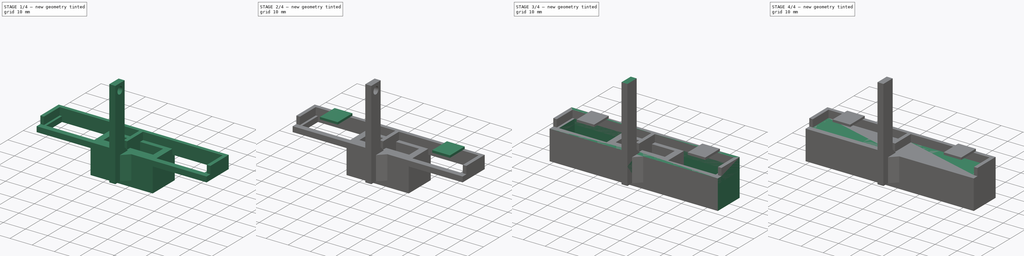
[diagram: build sequence overview — one tinted view per stage of 4, left to right]
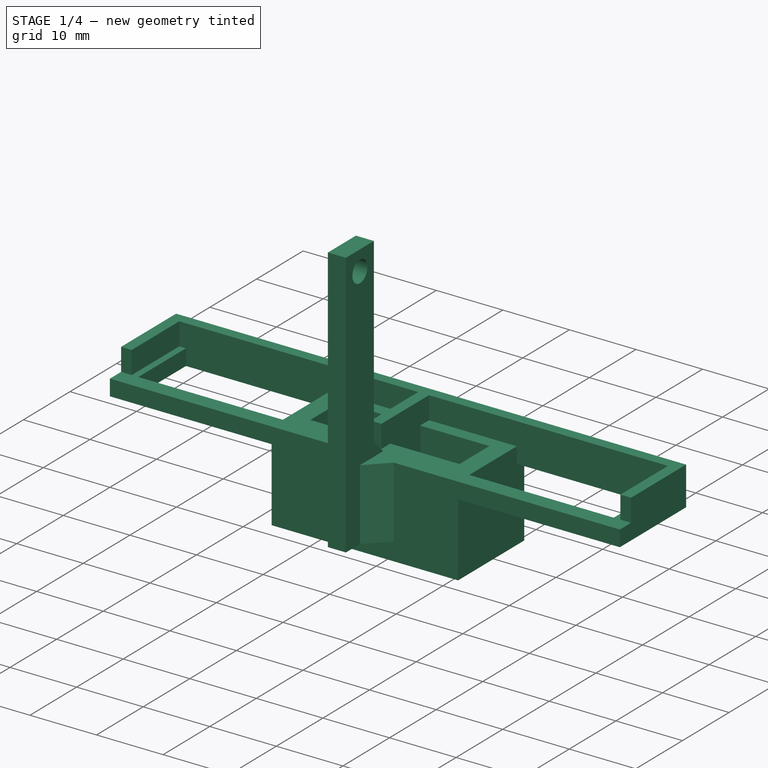
[diagram: stage 1 of 4 — iso view after this stage's code; geometry added in this stage tinted green]
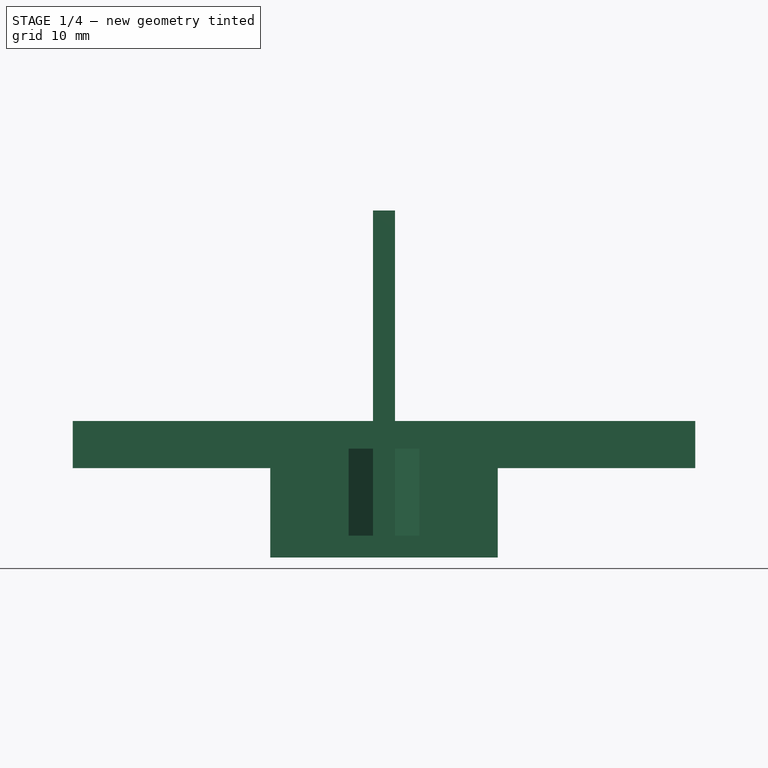
[diagram: stage 1 of 4 — front view after this stage's code; geometry added in this stage tinted green]
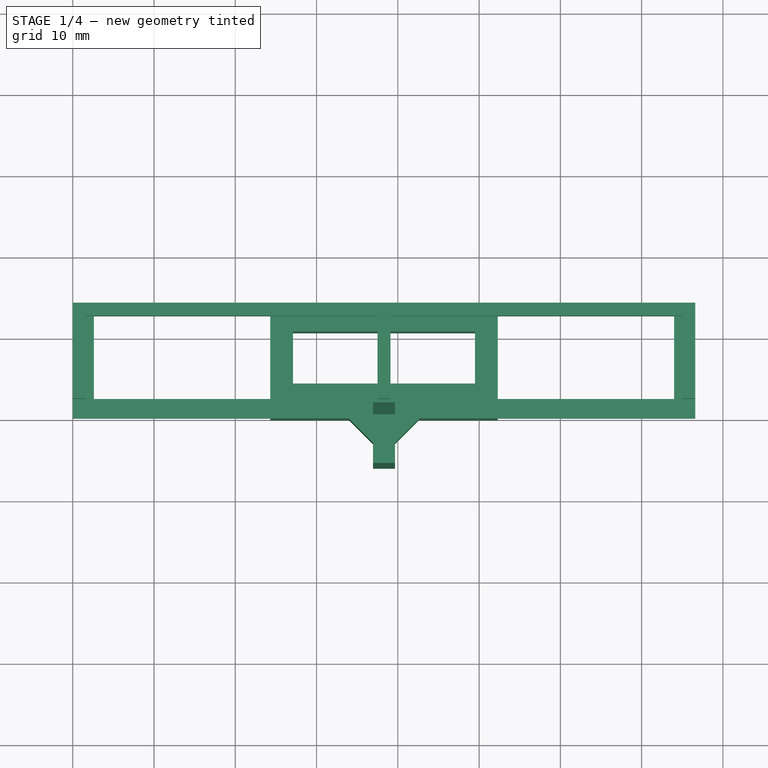
[diagram: stage 1 of 4 — top view after this stage's code; geometry added in this stage tinted green]
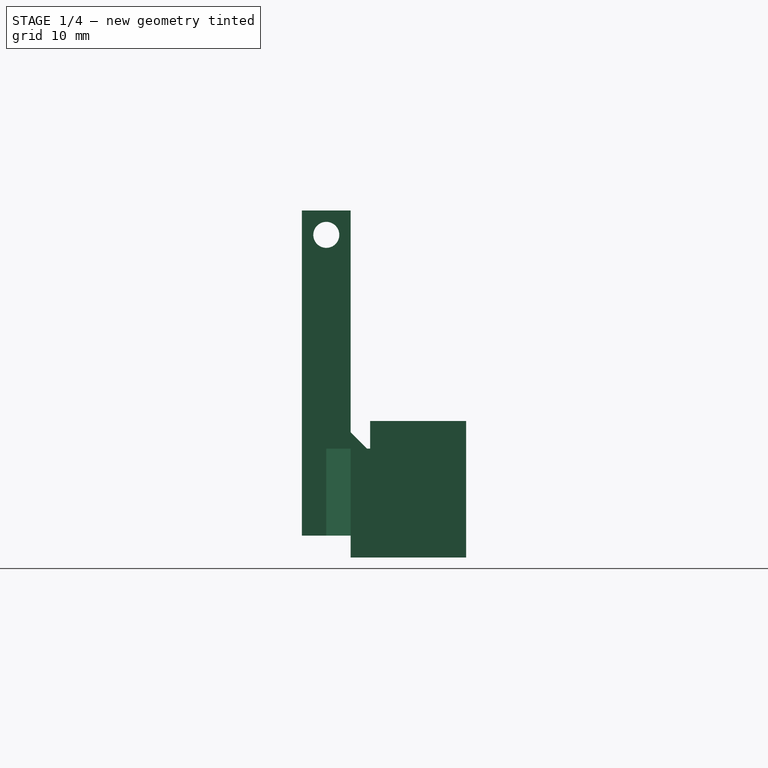
[diagram: stage 1 of 4 — right view after this stage's code; geometry added in this stage tinted green]
FCSTD DOCUMENT  (FreeCAD 0.16R6712 (Git))
Label: ir3
License: All rights reserved
LicenseURL: http://en.wikipedia.org/wiki/All_rights_reserved
objects: Sketcher::SketchObject×10, PartDesign::Pocket×5, PartDesign::Pad×5, Part::Feature×4, App::MeasureDistance×2, Part::Chamfer×2, Part::Box×1
note: 37 computed .brp shape members not serialized (recipe doc carries the construction recipe); baked Part::Feature solids carry a one-line shape summary decoded from their .brp

FEATURE [App::MeasureDistance] Distance001  label="Distance: 11 mm"
  Distance = 11
  P1 = (24.3,0,0)
  P2 = (24.3,0,11)
FEATURE [Part::Feature] Pad001001  label="Pad002"
  shape: bbox 76.6 x 20.2 x 42.7 mm, 36 faces (baked)
FEATURE [Sketcher::SketchObject] Sketch006
  ExternalGeometry = -> [Pad001001]
  Placement = pos=(39.65,0,0) rot=(0.57735,0.57735,0.57735;2.0944rad)
  Support = -> Pad001001 [Face34]
  sketch-geometry (1):
    g0: Circle CenterX=-3 CenterY=39.7 CenterZ=0 NormalX=0 NormalY=0 NormalZ=1 Radius=1.6
  constraints (3):
    c: DistanceX(g-4,g0) = 3
    c: DistanceY(g0,g-4) = 3
    c: Radius(g0) = 1.6
FEATURE [PartDesign::Pocket] Pocket004002
  Length = 5
  Sketch = -> Sketch006
  Type = 0
FEATURE [Part::Chamfer] Chamfer
  Base = -> Pocket004002
  Edges = 1 edges r=3: [Edge18]
FEATURE [Part::Chamfer] Chamfer001
  Base = -> Chamfer
  Edges = 2 edges r=3: [Edge37,Edge41]
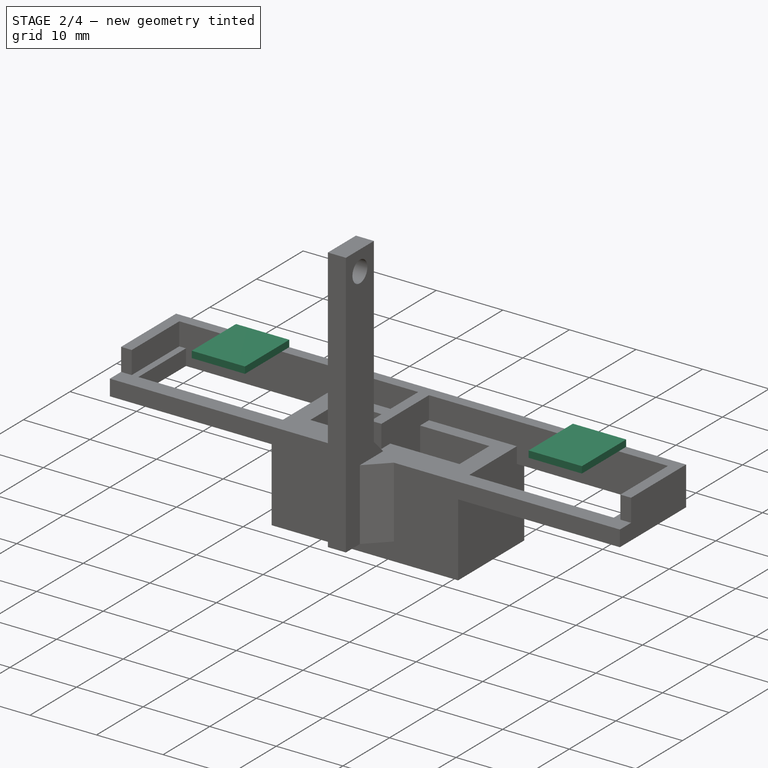
[diagram: stage 2 of 4 — iso view after this stage's code; geometry added in this stage tinted green]
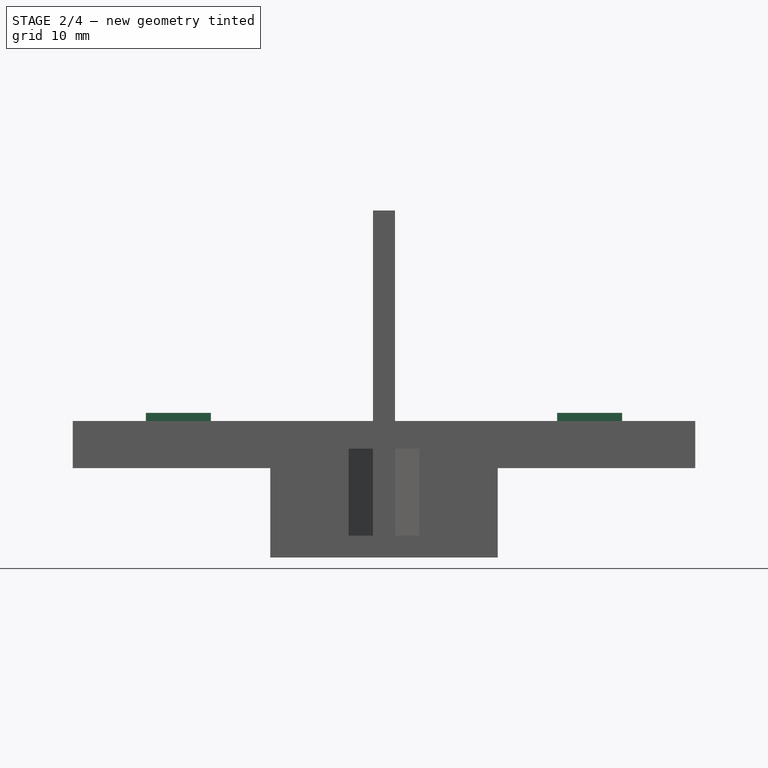
[diagram: stage 2 of 4 — front view after this stage's code; geometry added in this stage tinted green]
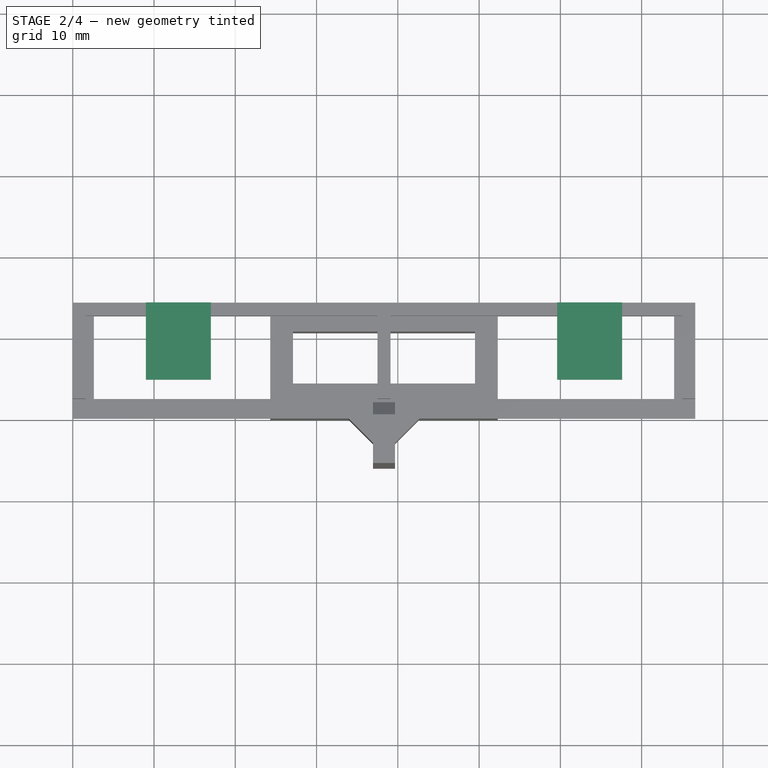
[diagram: stage 2 of 4 — top view after this stage's code; geometry added in this stage tinted green]
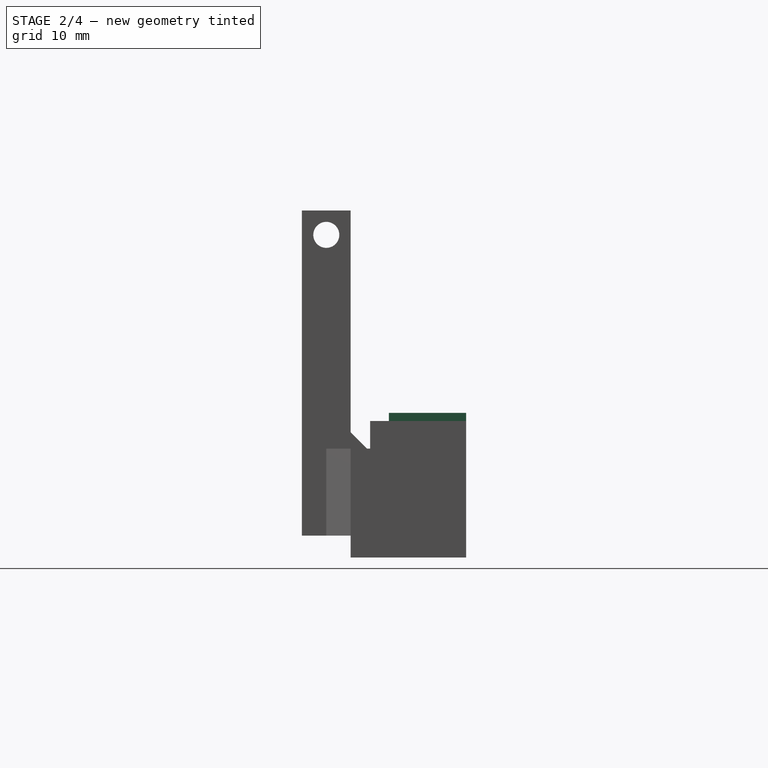
[diagram: stage 2 of 4 — right view after this stage's code; geometry added in this stage tinted green]
FEATURE [Sketcher::SketchObject] Sketch007
  ExternalGeometry = -> [Chamfer001]
  Placement = pos=(0,0,16.8) rot=(0,0,1;0rad)
  Support = -> Chamfer001 [Face35]
  sketch-geometry (8):
    g0: LineSegment StartX=9 StartY=14.2 StartZ=0 EndX=17 EndY=14.2 EndZ=0
    g1: LineSegment StartX=17 StartY=14.2 StartZ=0 EndX=17 EndY=12.7 EndZ=0
    g2: LineSegment StartX=17 StartY=12.7 StartZ=0 EndX=9 EndY=12.7 EndZ=0
    g3: LineSegment StartX=9 StartY=12.7 StartZ=0 EndX=9 EndY=14.2 EndZ=0
    g4: LineSegment StartX=59.6 StartY=14.2 StartZ=0 EndX=67.6 EndY=14.2 EndZ=0
    g5: LineSegment StartX=67.6 StartY=14.2 StartZ=0 EndX=67.6 EndY=12.7 EndZ=0
    g6: LineSegment StartX=67.6 StartY=12.7 StartZ=0 EndX=59.6 EndY=12.7 EndZ=0
    g7: LineSegment StartX=59.6 StartY=12.7 StartZ=0 EndX=59.6 EndY=14.2 EndZ=0
  constraints (24):
    c: Coincident(g0,g1)
    c: Coincident(g1,g2)
    c: Coincident(g2,g3)
    c: Coincident(g3,g0)
    c: Horizontal(g0)
    c: Horizontal(g2)
    c: Vertical(g1)
    c: Vertical(g3)
    c: DistanceY(g1,g1) = 1.5
    c: DistanceX(g-4,g0) = 9
    c: DistanceX(g0,g0) = 8
    c: DistanceY(g0,g-4) = 0
    c: Coincident(g4,g5)
    c: Coincident(g5,g6)
    c: Coincident(g6,g7)
    c: Coincident(g7,g4)
    c: Horizontal(g4)
    c: Horizontal(g6)
    c: Vertical(g5)
    c: Vertical(g7)
    c: DistanceX(g4,g4) = 8
    c: DistanceY(g7,g7) = 1.5
    c: DistanceX(g4,g-5) = 9
    c: DistanceY(g4,g-5) = 0
FEATURE [PartDesign::Pad] Pad001002
  Length = 1
  Length2 = 100
  Sketch = -> Sketch007
  Type = 0
FEATURE [Sketcher::SketchObject] Sketch008
  ExternalGeometry = -> [Pad001002]
  Placement = pos=(0,12.7,0) rot=(1,0,0;1.5708rad)
  Support = -> Pad001002 [Face42]
  sketch-geometry (4):
    g0: LineSegment StartX=9 StartY=17.8 StartZ=0 EndX=17 EndY=17.8 EndZ=0
    g1: LineSegment StartX=17 StartY=17.8 StartZ=0 EndX=17 EndY=16.8 EndZ=0
    g2: LineSegment StartX=17 StartY=16.8 StartZ=0 EndX=9 EndY=16.8 EndZ=0
    g3: LineSegment StartX=9 StartY=16.8 StartZ=0 EndX=9 EndY=17.8 EndZ=0
  constraints (11):
    c: Coincident(g0,g1)
    c: Coincident(g1,g2)
    c: Coincident(g2,g3)
    c: Coincident(g3,g0)
    c: Horizontal(g0)
    c: Horizontal(g2)
    c: Vertical(g1)
    c: Vertical(g3)
    c: Coincident(g2,g-4)
    c: Coincident(g0,g-4)
    c: Coincident(g0,g-5)
FEATURE [PartDesign::Pad] Pad001003
  Length = 8
  Length2 = 100
  Sketch = -> Sketch008
  Type = 0
FEATURE [Sketcher::SketchObject] Sketch009
  ExternalGeometry = -> [Pad001003]
  Placement = pos=(0,12.7,0) rot=(1,0,0;1.5708rad)
  Support = -> Pad001003 [Face51]
  sketch-geometry (4):
    g0: LineSegment StartX=59.6 StartY=17.8 StartZ=0 EndX=67.6 EndY=17.8 EndZ=0
    g1: LineSegment StartX=67.6 StartY=17.8 StartZ=0 EndX=67.6 EndY=16.8 EndZ=0
    g2: LineSegment StartX=67.6 StartY=16.8 StartZ=0 EndX=59.6 EndY=16.8 EndZ=0
    g3: LineSegment StartX=59.6 StartY=16.8 StartZ=0 EndX=59.6 EndY=17.8 EndZ=0
  constraints (11):
    c: Coincident(g0,g1)
    c: Coincident(g1,g2)
    c: Coincident(g2,g3)
    c: Coincident(g3,g0)
    c: Horizontal(g0)
    c: Horizontal(g2)
    c: Vertical(g1)
    c: Vertical(g3)
    c: Coincident(g2,g-4)
    c: Coincident(g0,g-4)
    c: Coincident(g0,g-5)
FEATURE [PartDesign::Pad] Pad001004
  Length = 8
  Length2 = 100
  Sketch = -> Sketch009
  Type = 0
FEATURE [Part::Feature] Pad001004001  label="Pad001005"
  shape: bbox 76.6 x 20.2 x 42.7 mm, 52 faces (baked)
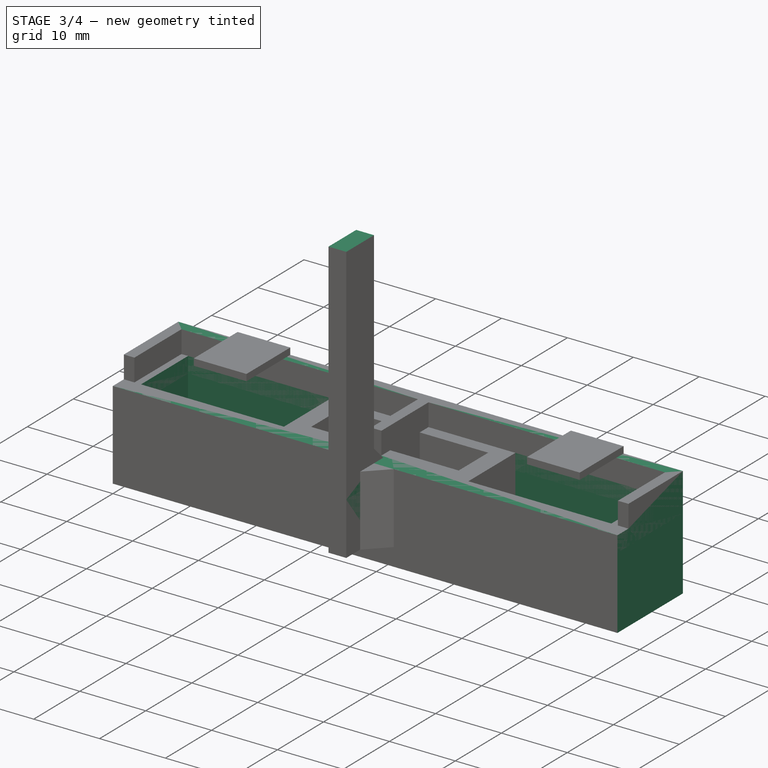
[diagram: stage 3 of 4 — iso view after this stage's code; geometry added in this stage tinted green]
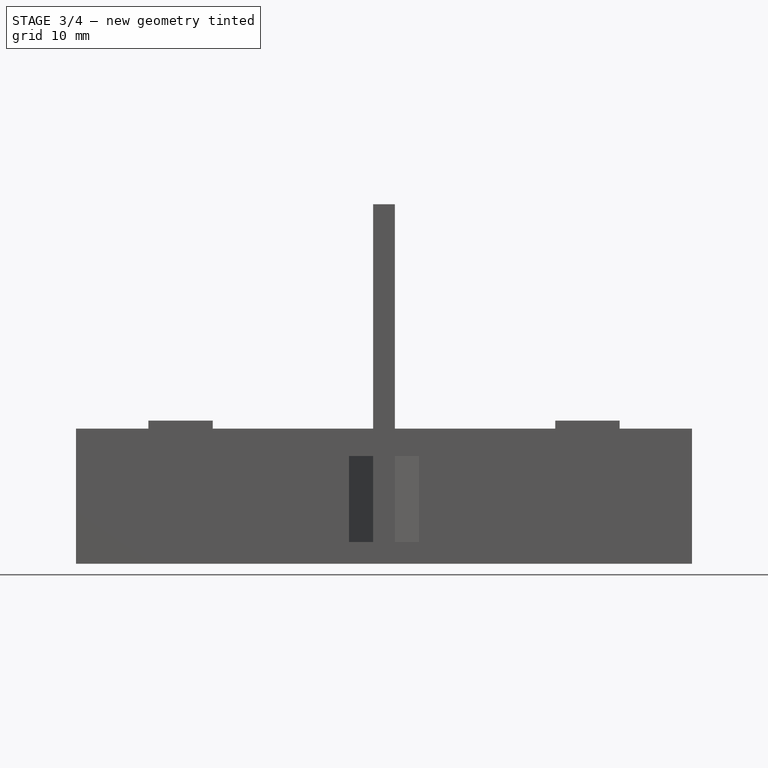
[diagram: stage 3 of 4 — front view after this stage's code; geometry added in this stage tinted green]
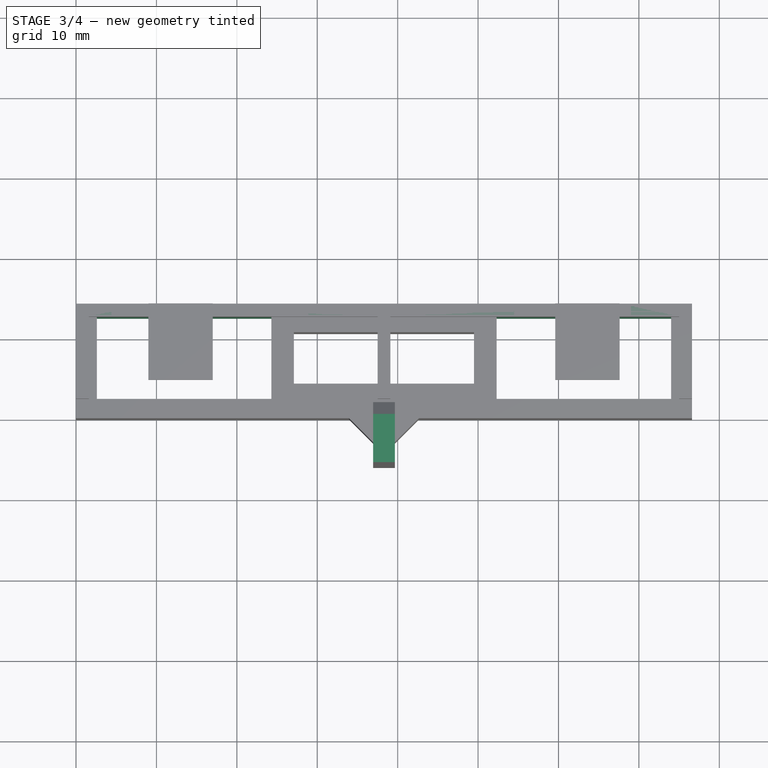
[diagram: stage 3 of 4 — top view after this stage's code; geometry added in this stage tinted green]
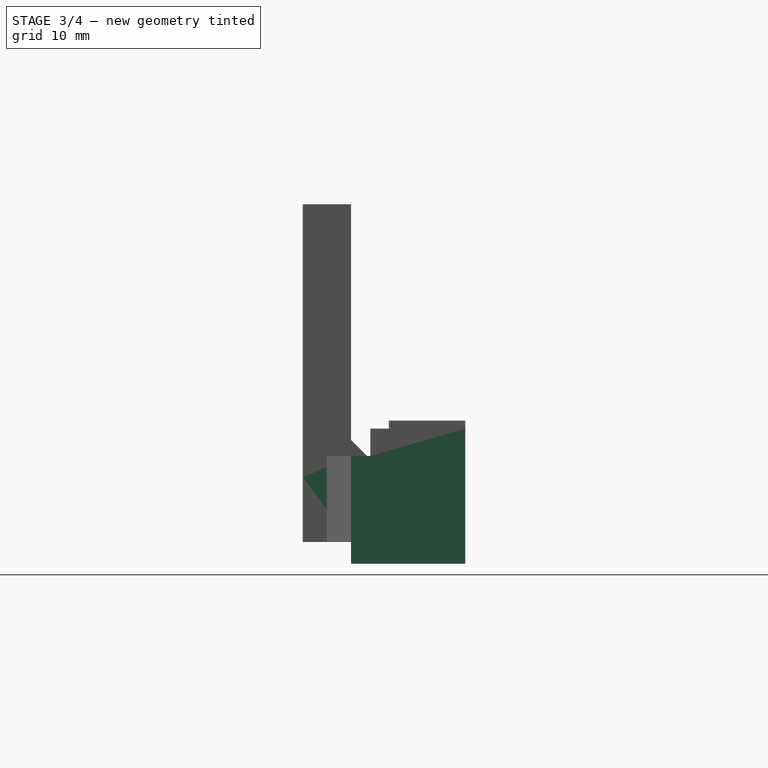
[diagram: stage 3 of 4 — right view after this stage's code; geometry added in this stage tinted green]
FEATURE [Part::Feature] Pocket001
  shape: bbox 76.6 x 14.2 x 16.8 mm, 16 faces (baked)
FEATURE [Sketcher::SketchObject] Sketch
  ExternalGeometry = -> [Pocket001]
  Placement = pos=(0,0,13.4) rot=(0,0,1;0rad)
  Support = -> Pocket001 [Face3]
  sketch-geometry (10):
    g0: LineSegment [constr] StartX=75 StartY=12.6 StartZ=0 EndX=74 EndY=12.6 EndZ=0
    g1: LineSegment [constr] StartX=1.6 StartY=12.6 StartZ=0 EndX=2.6 EndY=12.6 EndZ=0
    g2: LineSegment StartX=74 StartY=12.6 StartZ=0 EndX=52.3 EndY=12.6 EndZ=0
    g3: LineSegment StartX=52.3 StartY=12.6 StartZ=0 EndX=52.3 EndY=2.4 EndZ=0
    g4: LineSegment StartX=52.3 StartY=2.4 StartZ=0 EndX=74 EndY=2.4 EndZ=0
    g5: LineSegment StartX=74 StartY=2.4 StartZ=0 EndX=74 EndY=12.6 EndZ=0
    g6: LineSegment StartX=2.6 StartY=12.6 StartZ=0 EndX=24.3 EndY=12.6 EndZ=0
    g7: LineSegment StartX=24.3 StartY=12.6 StartZ=0 EndX=24.3 EndY=2.4 EndZ=0
    g8: LineSegment StartX=24.3 StartY=2.4 StartZ=0 EndX=2.6 EndY=2.4 EndZ=0
    g9: LineSegment StartX=2.6 StartY=2.4 StartZ=0 EndX=2.6 EndY=12.6 EndZ=0
  constraints (28):
    c: Coincident(g0,g-4)
    c: Horizontal(g0)
    c: DistanceX(g0,g0) = 1
    c: Coincident(g1,g-6)
    c: PointOnObject(g1,g-5)
    c: DistanceX(g1,g1) = 1
    c: Coincident(g2,g3)
    c: Coincident(g3,g4)
    c: Coincident(g4,g5)
    c: Coincident(g5,g2)
    c: Horizontal(g2)
    c: Horizontal(g4)
    c: Vertical(g3)
    c: Vertical(g5)
    c: Coincident(g2,g0)
    c: Coincident(g6,g7)
    c: Coincident(g7,g8)
    c: Coincident(g8,g9)
    c: Coincident(g9,g6)
    c: Horizontal(g6)
    c: Horizontal(g8)
    c: Vertical(g7)
    c: Vertical(g9)
    c: Coincident(g6,g1)
    c: DistanceX(g8,g8) = 21.7
    c: DistanceY(g7,g7) = 10.2
    c: DistanceX(g4,g4) = 21.7
    c: DistanceY(g3,g3) = 10.2
FEATURE [PartDesign::Pocket] Pocket002
  Length = 14
  Sketch = -> Sketch
  Type = 0
FEATURE [Sketcher::SketchObject] Sketch002
  ExternalGeometry = -> [Pocket002]
  Placement = pos=(0,0,13.4) rot=(0,0,1;0rad)
  Support = -> Pocket002 [Face3]
  sketch-geometry (10):
    g0: LineSegment [constr] StartX=37.5 StartY=12.6 StartZ=0 EndX=37.5 EndY=10.7 EndZ=0
    g1: LineSegment StartX=37.5 StartY=10.7 StartZ=0 EndX=27.1 EndY=10.7 EndZ=0
    g2: LineSegment StartX=27.1 StartY=10.7 StartZ=0 EndX=27.1 EndY=4.3 EndZ=0
    g3: LineSegment StartX=27.1 StartY=4.3 StartZ=0 EndX=37.5 EndY=4.3 EndZ=0
    g4: LineSegment StartX=37.5 StartY=4.3 StartZ=0 EndX=37.5 EndY=10.7 EndZ=0
    g5: LineSegment [constr] StartX=39.1 StartY=12.6 StartZ=0 EndX=39.1 EndY=10.7 EndZ=0
    g6: LineSegment StartX=39.1 StartY=10.7 StartZ=0 EndX=49.5 EndY=10.7 EndZ=0
    g7: LineSegment StartX=49.5 StartY=10.7 StartZ=0 EndX=49.5 EndY=4.3 EndZ=0
    g8: LineSegment StartX=49.5 StartY=4.3 StartZ=0 EndX=39.1 EndY=4.3 EndZ=0
    g9: LineSegment StartX=39.1 StartY=4.3 StartZ=0 EndX=39.1 EndY=10.7 EndZ=0
  constraints (28):
    c: Coincident(g0,g-4)
    c: Vertical(g0)
    c: DistanceY(g0,g0) = 1.9
    c: Coincident(g1,g2)
    c: Coincident(g2,g3)
    c: Coincident(g3,g4)
    c: Coincident(g4,g1)
    c: Horizontal(g1)
    c: Horizontal(g3)
    c: Vertical(g2)
    c: Vertical(g4)
    c: Coincident(g1,g0)
    c: DistanceX(g1,g1) = 10.4
    c: DistanceY(g2,g2) = 6.4
    c: Coincident(g5,g-6)
    c: PointOnObject(g5,g-6)
    c: DistanceY(g5,g5) = 1.9
    c: Coincident(g6,g7)
    c: Coincident(g7,g8)
    c: Coincident(g8,g9)
    c: Coincident(g9,g6)
    c: Horizontal(g6)
    c: Horizontal(g8)
    c: Vertical(g7)
    c: Vertical(g9)
    c: Coincident(g6,g5)
    c: DistanceX(g6,g6) = 10.4
    c: DistanceY(g7,g7) = 6.4
FEATURE [PartDesign::Pocket] Pocket003
  Length = 14
  Sketch = -> Sketch002
  Type = 0
FEATURE [Part::Feature] Pocket004001  label="Pocket005"
  shape: bbox 76.6 x 14.2 x 16.8 mm, 30 faces (baked)
FEATURE [Sketcher::SketchObject] Sketch004
  ExternalGeometry = -> [Pocket004001]
  Placement = pos=(0,0,0) rot=(1,0,0;1.5708rad)
  Support = -> Pocket004001 [Face2]
  sketch-geometry (4):
    g0: LineSegment StartX=36.95 StartY=10.7 StartZ=0 EndX=39.65 EndY=10.7 EndZ=0
    g1: LineSegment StartX=39.65 StartY=10.7 StartZ=0 EndX=39.65 EndY=2.7 EndZ=0
    g2: LineSegment StartX=39.65 StartY=2.7 StartZ=0 EndX=36.95 EndY=2.7 EndZ=0
    g3: LineSegment StartX=36.95 StartY=2.7 StartZ=0 EndX=36.95 EndY=10.7 EndZ=0
  constraints (12):
    c: Coincident(g0,g1)
    c: Coincident(g1,g2)
    c: Coincident(g2,g3)
    c: Coincident(g3,g0)
    c: Horizontal(g0)
    c: Horizontal(g2)
    c: Vertical(g1)
    c: Vertical(g3)
    c: DistanceX(g2,g2) = 2.7
    c: DistanceX(g-3,g0) = 36.95
    c: DistanceY(g1,g1) = 8
    c: DistanceY(g0,g-3) = 2.7
FEATURE [PartDesign::Pad] Pad
  Length = 6
  Length2 = 100
  Sketch = -> Sketch004
  Type = 0
FEATURE [Sketcher::SketchObject] Sketch005
  ExternalGeometry = -> [Pad]
  Placement = pos=(0,0,10.7) rot=(0,0,1;0rad)
  Support = -> Pad [Face15]
  sketch-geometry (4):
    g0: LineSegment StartX=36.95 StartY=0 StartZ=0 EndX=39.65 EndY=0 EndZ=0
    g1: LineSegment StartX=39.65 StartY=0 StartZ=0 EndX=39.65 EndY=-6 EndZ=0
    g2: LineSegment StartX=39.65 StartY=-6 StartZ=0 EndX=36.95 EndY=-6 EndZ=0
    g3: LineSegment StartX=36.95 StartY=-6 StartZ=0 EndX=36.95 EndY=0 EndZ=0
  constraints (10):
    c: Coincident(g0,g1)
    c: Coincident(g1,g2)
    c: Coincident(g2,g3)
    c: Coincident(g3,g0)
    c: Horizontal(g0)
    c: Horizontal(g2)
    c: Vertical(g1)
    c: Vertical(g3)
    c: Coincident(g0,g-4)
    c: Coincident(g1,g-5)
FEATURE [PartDesign::Pad] Pad001
  Length = 34
  Length2 = 100
  Sketch = -> Sketch005
  Type = 0
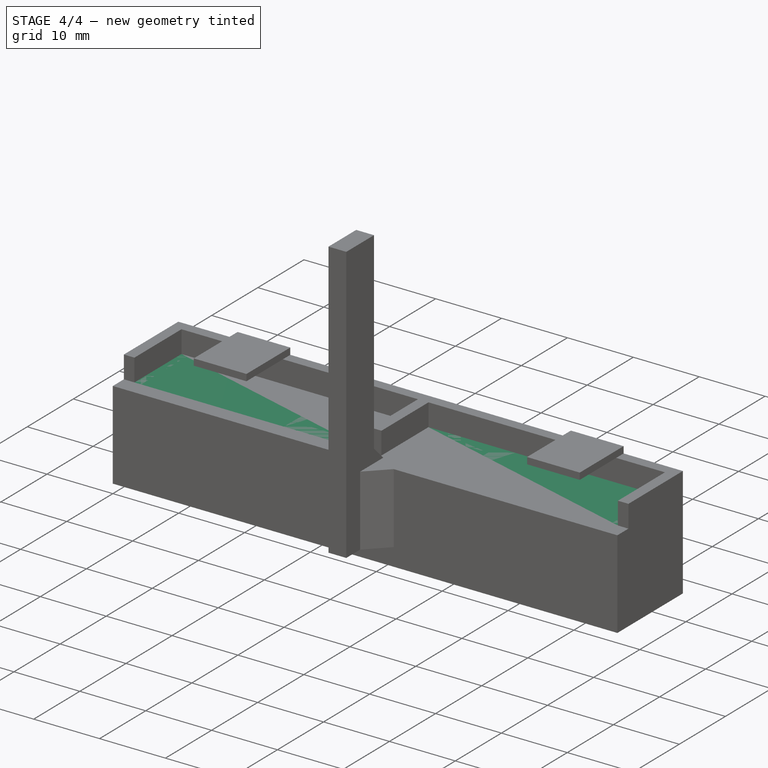
[diagram: stage 4 of 4 — iso view after this stage's code; geometry added in this stage tinted green]
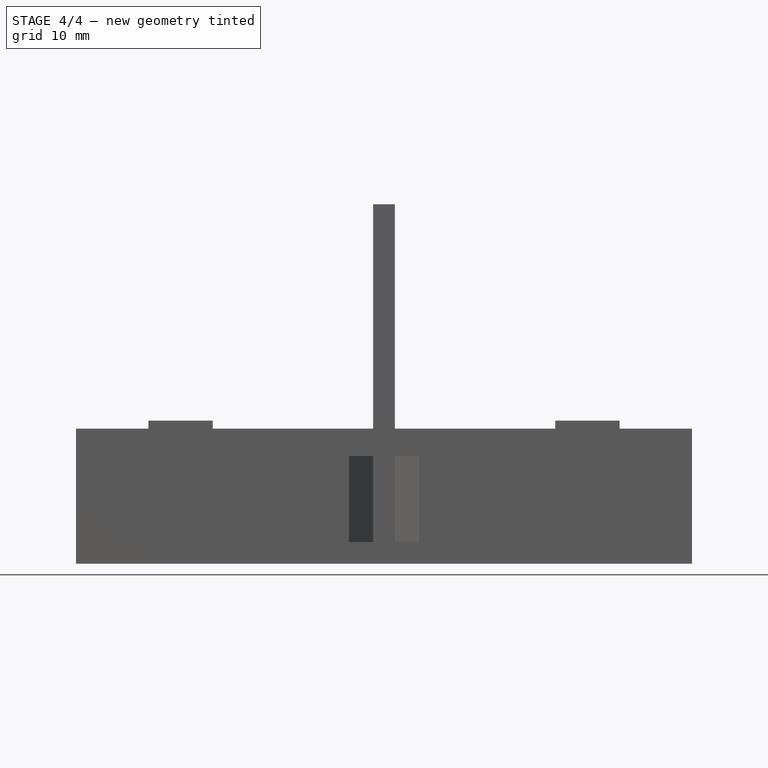
[diagram: stage 4 of 4 — front view after this stage's code; geometry added in this stage tinted green]
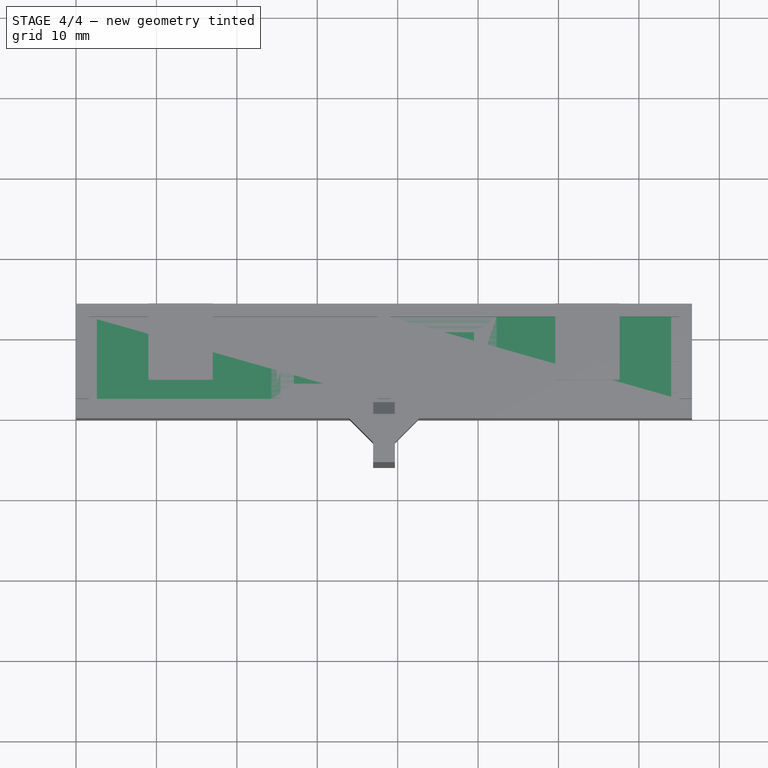
[diagram: stage 4 of 4 — top view after this stage's code; geometry added in this stage tinted green]
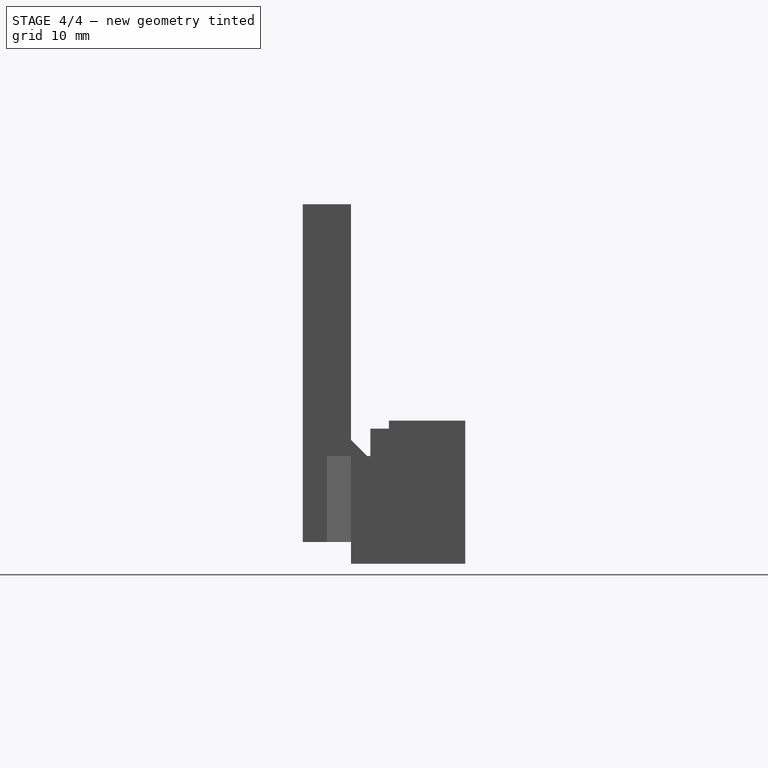
[diagram: stage 4 of 4 — right view after this stage's code; geometry added in this stage tinted green]
FEATURE [Part::Box] Box  label="Cubo"
  Height = 16.8
  Length = 76.6
  Width = 14.2
FEATURE [Sketcher::SketchObject] Sketch001
  ExternalGeometry = -> [Box]
  Placement = pos=(0,0,16.8) rot=(0,0,1;0rad)
  Support = -> Box [Face6]
  sketch-geometry (12):
    g0: LineSegment StartX=0 StartY=2.4 StartZ=0 EndX=1.6 EndY=2.4 EndZ=0
    g1: LineSegment StartX=1.6 StartY=2.4 StartZ=0 EndX=1.6 EndY=12.6 EndZ=0
    g2: LineSegment StartX=1.6 StartY=12.6 StartZ=0 EndX=37.5 EndY=12.6 EndZ=0
    g3: LineSegment StartX=37.5 StartY=12.6 StartZ=0 EndX=37.5 EndY=2.4 EndZ=0
    g4: LineSegment StartX=37.5 StartY=2.4 StartZ=0 EndX=39.1 EndY=2.4 EndZ=0
    g5: LineSegment StartX=39.1 StartY=2.4 StartZ=0 EndX=39.1 EndY=12.6 EndZ=0
    g6: LineSegment StartX=39.1 StartY=12.6 StartZ=0 EndX=75 EndY=12.6 EndZ=0
    g7: LineSegment StartX=75 StartY=12.6 StartZ=0 EndX=75 EndY=2.4 EndZ=0
    g8: LineSegment StartX=0 StartY=0 StartZ=0 EndX=0 EndY=2.4 EndZ=0
    g9: LineSegment StartX=0 StartY=0 StartZ=0 EndX=76.6 EndY=0 EndZ=0
    g10: LineSegment StartX=76.6 StartY=0 StartZ=0 EndX=76.6 EndY=2.4 EndZ=0
    g11: LineSegment StartX=76.6 StartY=2.4 StartZ=0 EndX=75 EndY=2.4 EndZ=0
  constraints (34):
    c: Horizontal(g0)
    c: Coincident(g0,g1)
    c: Vertical(g1)
    c: Coincident(g1,g2)
    c: Horizontal(g2)
    c: Coincident(g2,g3)
    c: Vertical(g3)
    c: Coincident(g3,g4)
    c: Horizontal(g4)
    c: Coincident(g4,g5)
    c: Vertical(g5)
    c: Coincident(g5,g6)
    c: Horizontal(g6)
    c: Coincident(g6,g7)
    c: Vertical(g7)
    c: DistanceX(g0,g0) = 1.6
    c: Equal(g0,g4)
    c: Coincident(g-1,g8)
    c: Coincident(g8,g0)
    c: Vertical(g8)
    c: DistanceY(g8,g8) = 2.4
    c: DistanceY(g1,g1) = 10.2
    c: Equal(g1,g3)
    c: Equal(g3,g5)
    c: Equal(g5,g7)
    c: DistanceX(g2,g2) = 35.9
    c: Equal(g2,g6)
    c: Coincident(g-1,g9)
    c: Coincident(g9,g-4)
    c: Coincident(g9,g10)
    c: Coincident(g10,g11)
    c: Coincident(g11,g7)
    c: DistanceY(g10,g10) = 2.4
    c: DistanceX(g11,g11) = 1.6
FEATURE [PartDesign::Pocket] Pocket
  Length = 3.4
  Sketch = -> Sketch001
  Type = 0
FEATURE [App::MeasureDistance] Distance  label="Distance: 16,8 mm"
  Distance = 16.8
  P1 = (0,14.2,16.8)
  P2 = (0,14.2,0)
FEATURE [Sketcher::SketchObject] Sketch003
  ExternalGeometry = -> [Pocket003]
  Placement = pos=(0,14.2,0) rot=(0,0.707107,0.707107;3.14159rad)
  Support = -> Pocket003 [Face6]
  sketch-geometry (10):
    g0: LineSegment [constr] StartX=-76.6 StartY=16.8 StartZ=0 EndX=-76.6 EndY=11 EndZ=0
    g1: LineSegment StartX=-76.6 StartY=11 StartZ=0 EndX=-52.3 EndY=11 EndZ=0
    g2: LineSegment StartX=-52.3 StartY=11 StartZ=0 EndX=-52.3 EndY=0 EndZ=0
    g3: LineSegment StartX=-52.3 StartY=0 StartZ=0 EndX=-76.6 EndY=0 EndZ=0
    g4: LineSegment StartX=-76.6 StartY=0 StartZ=0 EndX=-76.6 EndY=11 EndZ=0
    g5: LineSegment [constr] StartX=0 StartY=16.8 StartZ=0 EndX=0 EndY=11 EndZ=0
    g6: LineSegment StartX=0 StartY=11 StartZ=0 EndX=-24.3 EndY=11 EndZ=0
    g7: LineSegment StartX=-24.3 StartY=11 StartZ=0 EndX=-24.3 EndY=0 EndZ=0
    g8: LineSegment StartX=-24.3 StartY=0 StartZ=0 EndX=0 EndY=0 EndZ=0
    g9: LineSegment StartX=0 StartY=0 StartZ=0 EndX=0 EndY=11 EndZ=0
  constraints (28):
    c: Vertical(g0)
    c: DistanceY(g0,g0) = 5.8
    c: Coincident(g0,g-4)
    c: Coincident(g1,g2)
    c: Coincident(g2,g3)
    c: Coincident(g3,g4)
    c: Coincident(g4,g1)
    c: Horizontal(g1)
    c: Horizontal(g3)
    c: Vertical(g2)
    c: Vertical(g4)
    c: DistanceX(g1,g1) = 24.3
    c: DistanceY(g2,g2) = 11
    c: Coincident(g1,g0)
    c: Coincident(g5,g-5)
    c: Vertical(g5)
    c: DistanceY(g5,g5) = 5.8
    c: Coincident(g6,g7)
    c: Coincident(g7,g8)
    c: Coincident(g8,g9)
    c: Coincident(g9,g6)
    c: Horizontal(g6)
    c: Horizontal(g8)
    c: Vertical(g7)
    c: Vertical(g9)
    c: Coincident(g6,g5)
    c: DistanceX(g6,g6) = 24.3
    c: DistanceY(g7,g7) = 11
FEATURE [PartDesign::Pocket] Pocket004
  Length = 15
  Sketch = -> Sketch003
  Type = 0
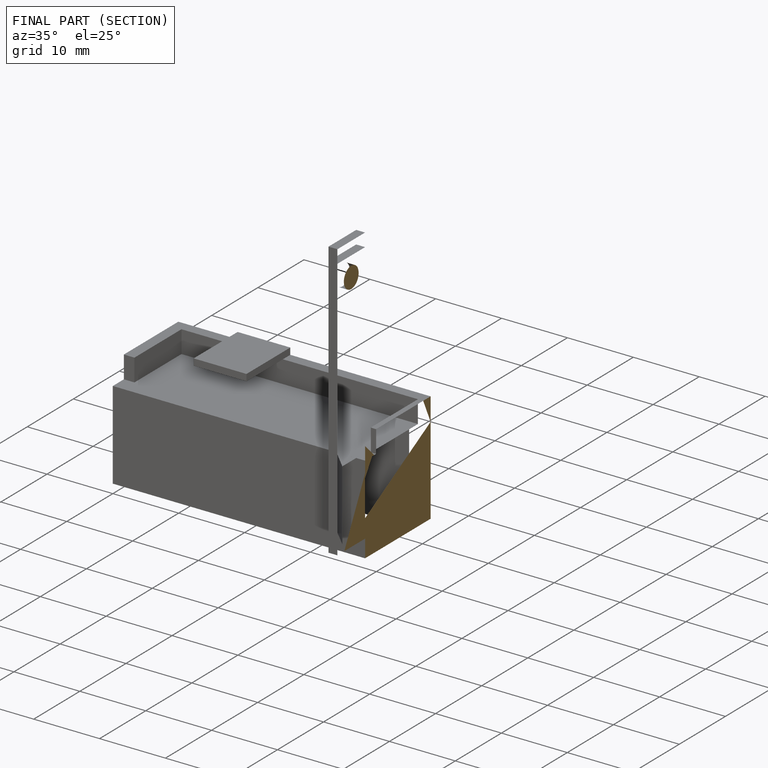
[diagram: finished part — half-section view (interior)]
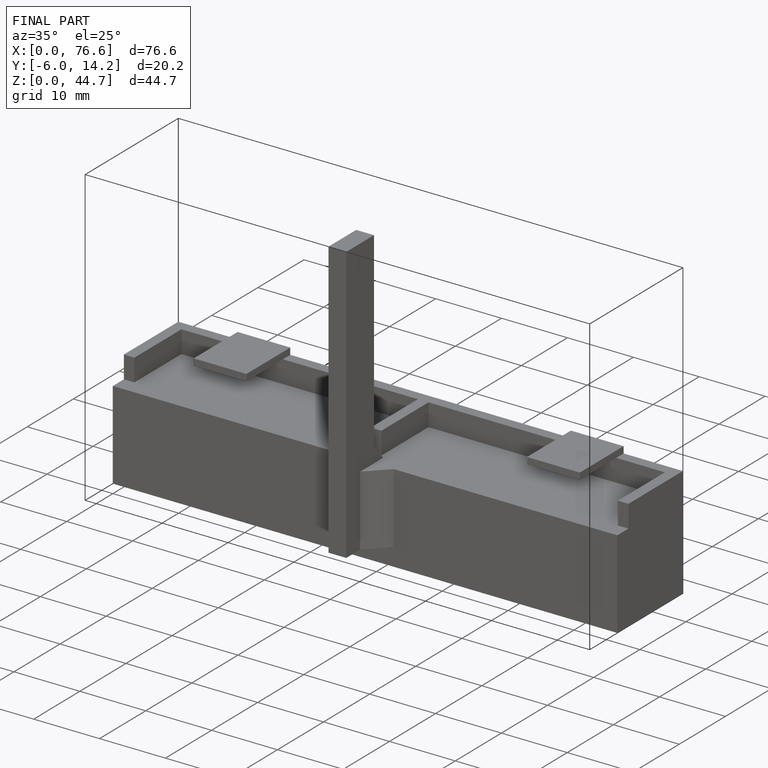
[diagram: finished part — iso view with bounding-box wireframe]
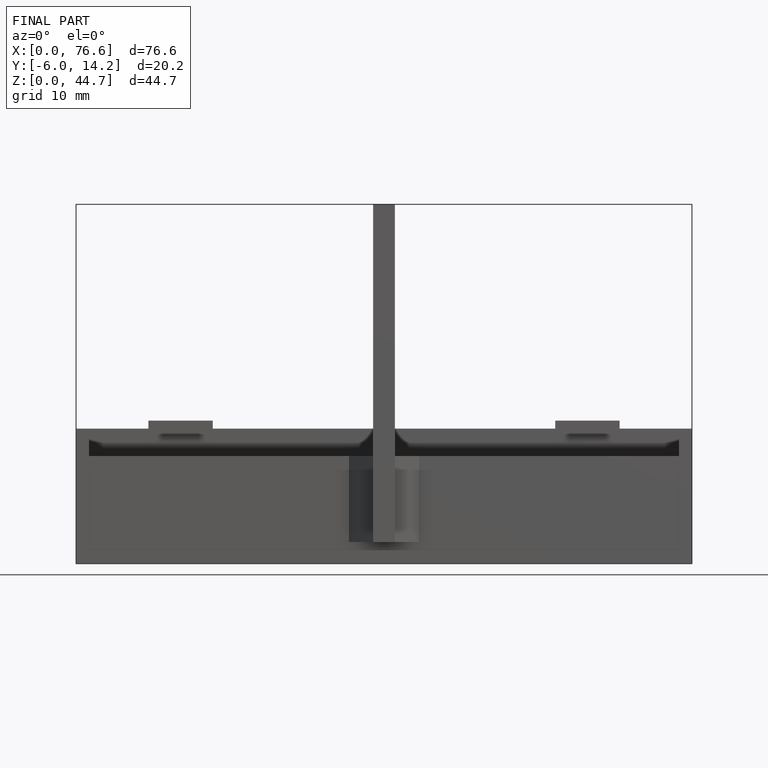
[diagram: finished part — front view with bounding-box wireframe]
